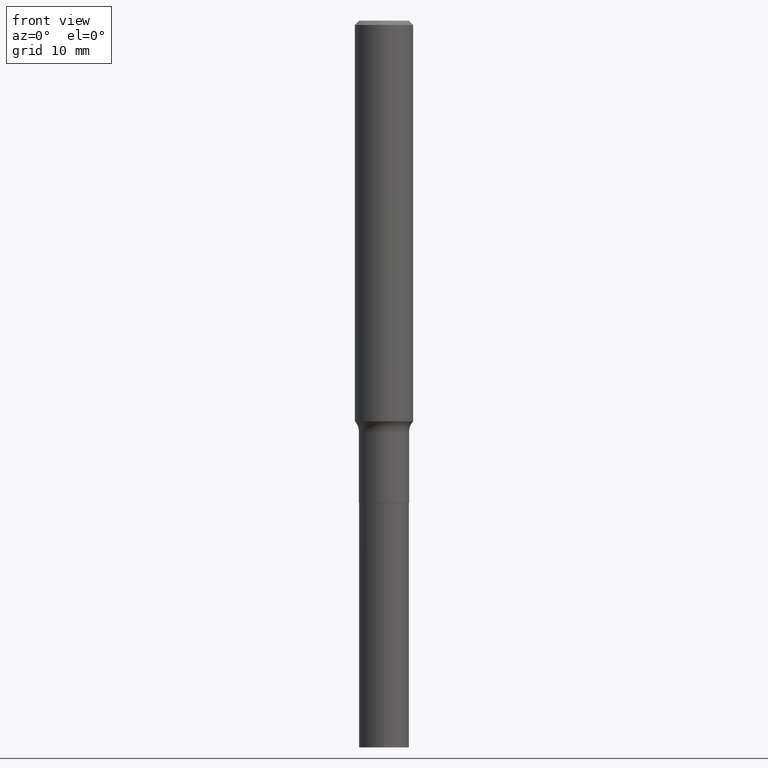
[diagram: clean part render]
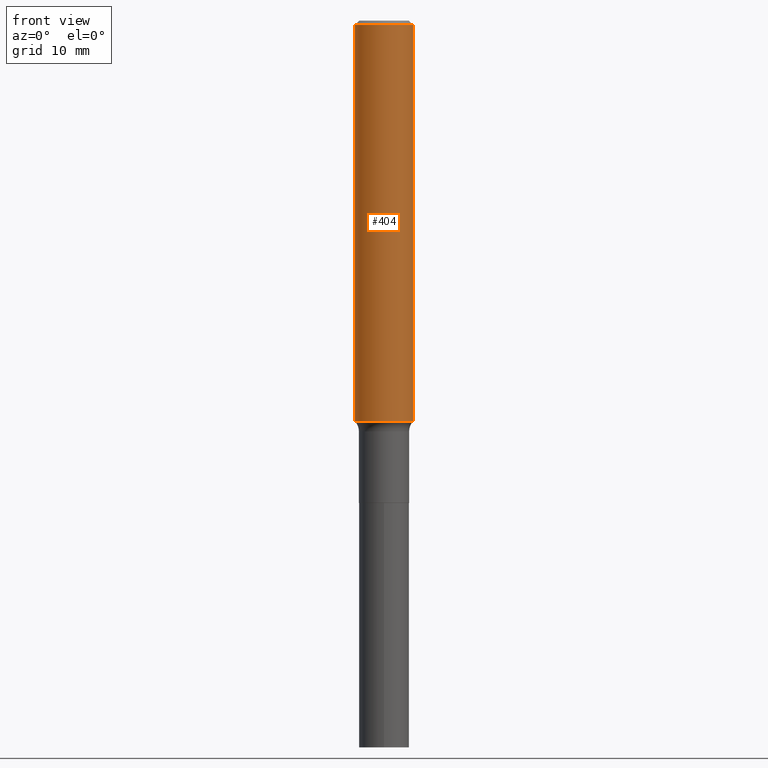
[diagram: same view with one face highlighted and labeled with its STEP entity id]
A machine part, front view. The second image highlights one B-rep face of the part: STEP entity #404.
In plain terms, the highlighted cylindrical surface (edge-blend (fillet) strip) has radius 4.0005 mm, axis along (-0, 0, 1).
Its self-contained STEP definition (entity closure, byte-faithful):
#4 = VERTEX_POINT ( 'NONE', #388 ) ;
#9 = EDGE_LOOP ( 'NONE', ( #42, #71, #271, #145 ) ) ;
#34 = CYLINDRICAL_SURFACE ( 'NONE', #119, 0.1575000000000001676 ) ;
#39 = LINE ( 'NONE', #105, #244 ) ;
#42 = ORIENTED_EDGE ( 'NONE', *, *, #419, .F. ) ;
#43 = CARTESIAN_POINT ( 'NONE',  ( -0.1575000000000002787, -6.459613645325440815E-15, -2.170631236041119738 ) ) ;
#71 = ORIENTED_EDGE ( 'NONE', *, *, #352, .T. ) ;
#84 = VERTEX_POINT ( 'NONE', #165 ) ;
#105 = CARTESIAN_POINT ( 'NONE',  ( -0.1575000000000001676, 1.119104808822158984E-15, -7.747322767151485392E-30 ) ) ;
#107 = CARTESIAN_POINT ( 'NONE',  ( 0.000000000000000000, 0.000000000000000000, 0.000000000000000000 ) ) ;
#119 = AXIS2_PLACEMENT_3D ( 'NONE', #107, #286, #405 ) ;
#121 = EDGE_CURVE ( 'NONE', #84, #4, #373, .T. ) ;
#139 = CARTESIAN_POINT ( 'NONE',  ( 0.1575000000000001676, -1.099816621735588269E-15, 7.679978421878606441E-30 ) ) ;
#145 = ORIENTED_EDGE ( 'NONE', *, *, #121, .F. ) ;
#165 = CARTESIAN_POINT ( 'NONE',  ( -0.1575000000000000011, -2.711497541566724726E-15, -0.02362500000000014588 ) ) ;
#174 = DIRECTION ( 'NONE',  ( -2.445468806185136877E-29, 3.491481338843145188E-15, 1.000000000000000000 ) ) ;
#211 = FACE_OUTER_BOUND ( 'NONE', #9, .T. ) ;
#244 = VECTOR ( 'NONE', #289, 39.37007874015748143 ) ;
#257 = VERTEX_POINT ( 'NONE', #43 ) ;
#271 = ORIENTED_EDGE ( 'NONE', *, *, #369, .T. ) ;
#277 = DIRECTION ( 'NONE',  ( -2.445468806185136597E-29, 3.491481338843145583E-15, 1.000000000000000000 ) ) ;
#283 = AXIS2_PLACEMENT_3D ( 'NONE', #423, #277, #350 ) ;
#286 = DIRECTION ( 'NONE',  ( -2.445468806185136597E-29, 3.491481338843145583E-15, 1.000000000000000000 ) ) ;
#288 = CARTESIAN_POINT ( 'NONE',  ( 0.1575000000000002787, -8.678535075883189843E-15, -2.170631236041119738 ) ) ;
#289 = DIRECTION ( 'NONE',  ( -2.445468806185136877E-29, 3.491481338843145188E-15, 1.000000000000000000 ) ) ;
#323 = LINE ( 'NONE', #139, #401 ) ;
#348 = AXIS2_PLACEMENT_3D ( 'NONE', #430, #467, #464 ) ;
#350 = DIRECTION ( 'NONE',  ( 1.000000000000000000, -6.982962677686265922E-15, 0.000000000000000000 ) ) ;
#352 = EDGE_CURVE ( 'NONE', #257, #379, #381, .T. ) ;
#369 = EDGE_CURVE ( 'NONE', #379, #4, #323, .T. ) ;
#373 = CIRCLE ( 'NONE', #283, 0.1575000000000000011 ) ;
#379 = VERTEX_POINT ( 'NONE', #288 ) ;
#381 = CIRCLE ( 'NONE', #348, 0.1575000000000003064 ) ;
#388 = CARTESIAN_POINT ( 'NONE',  ( 0.1575000000000000011, -1.182302868365756679E-15, -0.02362500000000014588 ) ) ;
#401 = VECTOR ( 'NONE', #174, 39.37007874015748143 ) ;
#404 = ADVANCED_FACE ( 'NONE', ( #211 ), #34, .T. ) ;
#405 = DIRECTION ( 'NONE',  ( 1.000000000000000000, -6.982962677686267499E-15, 4.876176775795935232E-29 ) ) ;
#419 = EDGE_CURVE ( 'NONE', #257, #84, #39, .T. ) ;
#423 = CARTESIAN_POINT ( 'NONE',  ( 5.777420054612421104E-31, -8.248624663016984002E-17, -0.02362500000000014588 ) ) ;
#430 = CARTESIAN_POINT ( 'NONE',  ( 5.308210977469644708E-29, -7.578718454147599996E-15, -2.170631236041119738 ) ) ;
#464 = DIRECTION ( 'NONE',  ( 1.000000000000000000, -6.982962677686267499E-15, 0.000000000000000000 ) ) ;
#467 = DIRECTION ( 'NONE',  ( -2.445468806185136597E-29, 3.491481338843145583E-15, 1.000000000000000000 ) ) ;